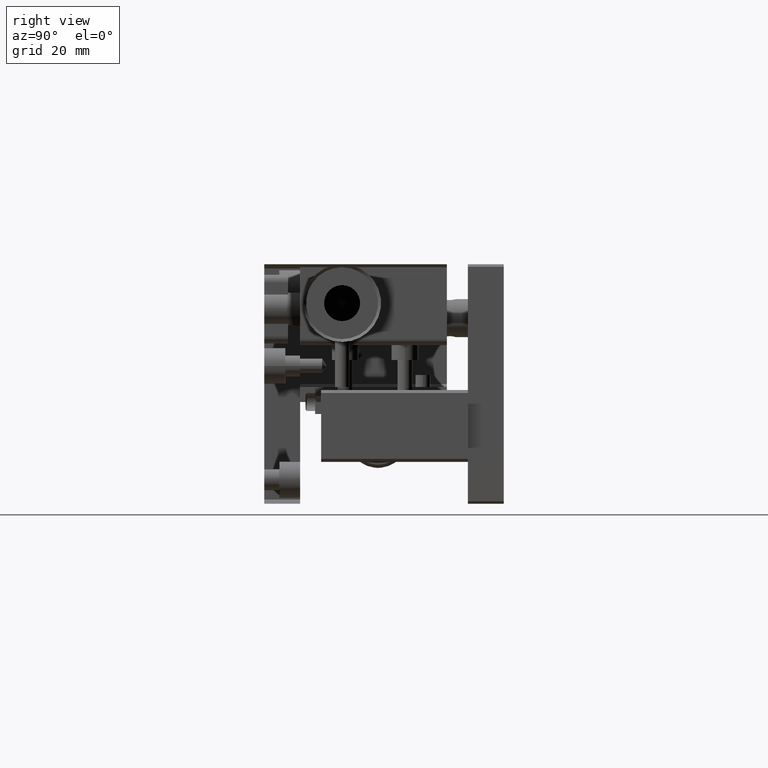
[diagram: clean part render]
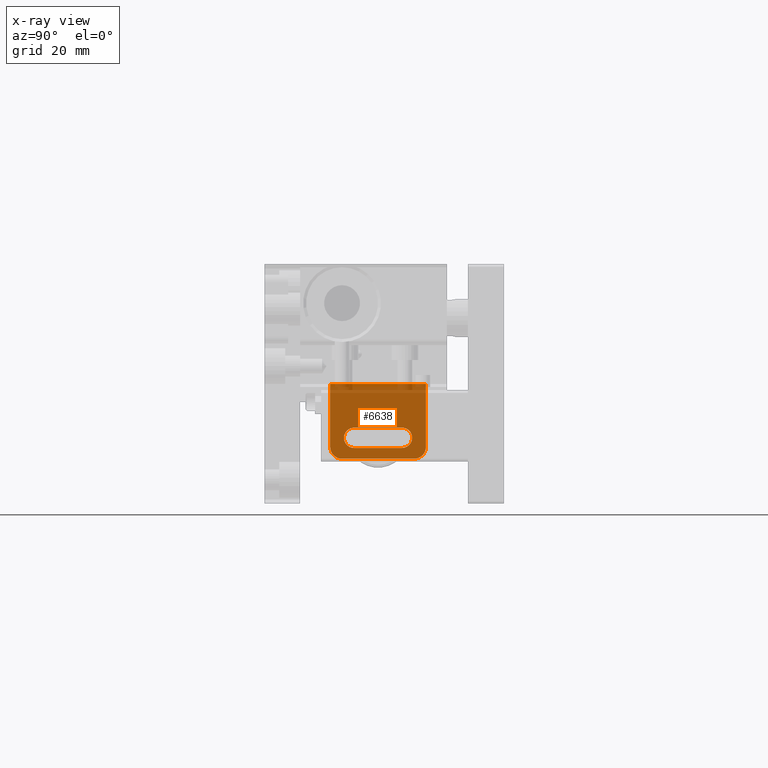
[diagram: x-ray — body ghosted, one internal face saturated and labeled with its STEP entity id]
A machine part, right view, then the same camera in x-ray: the body is ghosted and one INTERNAL B-rep face — a face not visible from any outside direction — is saturated and labeled: STEP entity #6638.
In plain terms, the highlighted planar face has unit normal (1, 0, 0).
Its self-contained STEP definition (entity closure, byte-faithful):
#7 = CARTESIAN_POINT ( 'NONE',  ( -5.000000000000000000, 27.00000000000000000, -30.50000000000000000 ) ) ;
#324 = DIRECTION ( 'NONE',  ( 0.000000000000000000, 0.000000000000000000, -1.000000000000000000 ) ) ;
#582 = CIRCLE ( 'NONE', #1944, 1.700000000000000178 ) ;
#602 = VERTEX_POINT ( 'NONE', #9150 ) ;
#621 = CARTESIAN_POINT ( 'NONE',  ( -5.000000000000000000, 25.00000000000000000, -30.69999999999999929 ) ) ;
#708 = EDGE_CURVE ( 'NONE', #1496, #602, #1750, .T. ) ;
#964 = DIRECTION ( 'NONE',  ( 0.000000000000000000, -1.000000000000000000, -0.000000000000000000 ) ) ;
#976 = VERTEX_POINT ( 'NONE', #5791 ) ;
#1304 = CARTESIAN_POINT ( 'NONE',  ( -5.000000000000000000, 15.00000000000000000, -30.69999999999999929 ) ) ;
#1496 = VERTEX_POINT ( 'NONE', #5086 ) ;
#1525 = CARTESIAN_POINT ( 'NONE',  ( -5.000000000000000000, 25.00000000000000000, -32.50000000000000000 ) ) ;
#1629 = DIRECTION ( 'NONE',  ( -0.000000000000000000, 1.000000000000000000, 0.000000000000000000 ) ) ;
#1750 = CIRCLE ( 'NONE', #10474, 1.999999999999988010 ) ;
#1859 = ORIENTED_EDGE ( 'NONE', *, *, #8424, .F. ) ;
#1944 = AXIS2_PLACEMENT_3D ( 'NONE', #6973, #2085, #7020 ) ;
#1947 = DIRECTION ( 'NONE',  ( -0.000000000000000000, -3.154042683594190190E-16, 1.000000000000000000 ) ) ;
#2085 = DIRECTION ( 'NONE',  ( -1.000000000000000000, -0.000000000000000000, -0.000000000000000000 ) ) ;
#2260 = VECTOR ( 'NONE', #3864, 1000.000000000000000 ) ;
#2311 = EDGE_CURVE ( 'NONE', #7168, #4127, #9356, .T. ) ;
#2444 = VECTOR ( 'NONE', #964, 1000.000000000000000 ) ;
#2490 = DIRECTION ( 'NONE',  ( -0.000000000000000000, -0.000000000000000000, 1.000000000000000000 ) ) ;
#2771 = DIRECTION ( 'NONE',  ( -1.000000000000000000, -0.000000000000000000, -0.000000000000000000 ) ) ;
#2915 = CARTESIAN_POINT ( 'NONE',  ( -5.000000000000000000, 25.00000000000000000, -14.00000000000000000 ) ) ;
#2958 = VECTOR ( 'NONE', #3283, 1000.000000000000000 ) ;
#3032 = EDGE_CURVE ( 'NONE', #976, #9192, #8303, .T. ) ;
#3224 = CARTESIAN_POINT ( 'NONE',  ( -5.000000000000000000, 25.00000000000000000, -27.30000000000000071 ) ) ;
#3283 = DIRECTION ( 'NONE',  ( -0.000000000000000000, 1.000000000000000000, 0.000000000000000000 ) ) ;
#3378 = LINE ( 'NONE', #5906, #6868 ) ;
#3518 = ORIENTED_EDGE ( 'NONE', *, *, #708, .F. ) ;
#3594 = VECTOR ( 'NONE', #1629, 1000.000000000000000 ) ;
#3627 = CARTESIAN_POINT ( 'NONE',  ( -5.000000000000000000, 25.00000000000000000, -30.50000000000000000 ) ) ;
#3686 = CARTESIAN_POINT ( 'NONE',  ( -5.000000000000000000, 15.00000000000000000, -27.30000000000000071 ) ) ;
#3720 = CARTESIAN_POINT ( 'NONE',  ( -5.000000000000000000, 13.00000000000000178, -30.50000000000000000 ) ) ;
#3721 = DIRECTION ( 'NONE',  ( 1.000000000000000000, 0.000000000000000000, 0.000000000000000000 ) ) ;
#3730 = ORIENTED_EDGE ( 'NONE', *, *, #3032, .F. ) ;
#3864 = DIRECTION ( 'NONE',  ( 0.000000000000000000, -1.000000000000000000, -0.000000000000000000 ) ) ;
#3888 = VERTEX_POINT ( 'NONE', #7263 ) ;
#4127 = VERTEX_POINT ( 'NONE', #1304 ) ;
#4170 = VERTEX_POINT ( 'NONE', #10300 ) ;
#4247 = ORIENTED_EDGE ( 'NONE', *, *, #10115, .F. ) ;
#4582 = CARTESIAN_POINT ( 'NONE',  ( -5.000000000000000000, 23.00000000000000000, -30.69999999999999929 ) ) ;
#4625 = DIRECTION ( 'NONE',  ( 1.000000000000000000, 0.000000000000000000, 0.000000000000000000 ) ) ;
#5086 = CARTESIAN_POINT ( 'NONE',  ( -5.000000000000000000, 11.00000000000000888, -30.50000000000000000 ) ) ;
#5106 = EDGE_CURVE ( 'NONE', #602, #3888, #8980, .T. ) ;
#5166 = CIRCLE ( 'NONE', #7912, 2.000000000000008882 ) ;
#5174 = ORIENTED_EDGE ( 'NONE', *, *, #8136, .F. ) ;
#5791 = CARTESIAN_POINT ( 'NONE',  ( -5.000000000000000888, 26.99999999999999645, -20.00000000000000000 ) ) ;
#5894 = EDGE_CURVE ( 'NONE', #4127, #9372, #582, .T. ) ;
#5906 = CARTESIAN_POINT ( 'NONE',  ( -5.000000000000000000, 11.00000000000000000, -14.00000000000000000 ) ) ;
#5976 = EDGE_LOOP ( 'NONE', ( #10214, #9370, #8865, #4247 ) ) ;
#6118 = VERTEX_POINT ( 'NONE', #7 ) ;
#6635 = CARTESIAN_POINT ( 'NONE',  ( -5.000000000000000888, 30.50000000000000000, -20.00000000000000000 ) ) ;
#6638 = ADVANCED_FACE ( 'NONE', ( #9470, #6995 ), #10258, .F. ) ;
#6732 = EDGE_CURVE ( 'NONE', #1496, #9192, #3378, .T. ) ;
#6868 = VECTOR ( 'NONE', #1947, 1000.000000000000000 ) ;
#6973 = CARTESIAN_POINT ( 'NONE',  ( -5.000000000000000000, 15.00000000000000000, -29.00000000000000000 ) ) ;
#6995 = FACE_BOUND ( 'NONE', #5976, .T. ) ;
#7020 = DIRECTION ( 'NONE',  ( 0.000000000000000000, 0.000000000000000000, -1.000000000000000000 ) ) ;
#7168 = VERTEX_POINT ( 'NONE', #4582 ) ;
#7263 = CARTESIAN_POINT ( 'NONE',  ( -5.000000000000000000, 25.00000000000000000, -32.50000000000000000 ) ) ;
#7424 = LINE ( 'NONE', #10526, #8100 ) ;
#7533 = DIRECTION ( 'NONE',  ( 1.000000000000000000, 0.000000000000000000, 0.000000000000000000 ) ) ;
#7688 = DIRECTION ( 'NONE',  ( 0.000000000000000000, 0.000000000000000000, -1.000000000000000000 ) ) ;
#7858 = CIRCLE ( 'NONE', #9230, 1.700000000000000178 ) ;
#7888 = AXIS2_PLACEMENT_3D ( 'NONE', #2915, #3721, #7688 ) ;
#7912 = AXIS2_PLACEMENT_3D ( 'NONE', #3627, #7533, #8511 ) ;
#7943 = ORIENTED_EDGE ( 'NONE', *, *, #5106, .F. ) ;
#8100 = VECTOR ( 'NONE', #2490, 1000.000000000000000 ) ;
#8117 = LINE ( 'NONE', #3224, #3594 ) ;
#8136 = EDGE_CURVE ( 'NONE', #3888, #6118, #5166, .T. ) ;
#8237 = ORIENTED_EDGE ( 'NONE', *, *, #6732, .T. ) ;
#8303 = LINE ( 'NONE', #6635, #2444 ) ;
#8424 = EDGE_CURVE ( 'NONE', #6118, #976, #7424, .T. ) ;
#8511 = DIRECTION ( 'NONE',  ( 0.000000000000000000, 0.000000000000000000, -1.000000000000000000 ) ) ;
#8806 = CARTESIAN_POINT ( 'NONE',  ( -5.000000000000000888, 10.99999999999999645, -20.00000000000000000 ) ) ;
#8865 = ORIENTED_EDGE ( 'NONE', *, *, #9402, .F. ) ;
#8980 = LINE ( 'NONE', #1525, #2958 ) ;
#9150 = CARTESIAN_POINT ( 'NONE',  ( -5.000000000000000000, 13.00000000000000178, -32.50000000000000000 ) ) ;
#9192 = VERTEX_POINT ( 'NONE', #8806 ) ;
#9230 = AXIS2_PLACEMENT_3D ( 'NONE', #10067, #2771, #324 ) ;
#9356 = LINE ( 'NONE', #621, #2260 ) ;
#9370 = ORIENTED_EDGE ( 'NONE', *, *, #2311, .F. ) ;
#9372 = VERTEX_POINT ( 'NONE', #3686 ) ;
#9402 = EDGE_CURVE ( 'NONE', #4170, #7168, #7858, .T. ) ;
#9470 = FACE_OUTER_BOUND ( 'NONE', #10459, .T. ) ;
#10067 = CARTESIAN_POINT ( 'NONE',  ( -5.000000000000000000, 23.00000000000000000, -29.00000000000000000 ) ) ;
#10115 = EDGE_CURVE ( 'NONE', #9372, #4170, #8117, .T. ) ;
#10214 = ORIENTED_EDGE ( 'NONE', *, *, #5894, .F. ) ;
#10257 = DIRECTION ( 'NONE',  ( 0.000000000000000000, 0.000000000000000000, -1.000000000000000000 ) ) ;
#10258 = PLANE ( 'NONE',  #7888 ) ;
#10300 = CARTESIAN_POINT ( 'NONE',  ( -5.000000000000000000, 23.00000000000000000, -27.30000000000000071 ) ) ;
#10459 = EDGE_LOOP ( 'NONE', ( #7943, #3518, #8237, #3730, #1859, #5174 ) ) ;
#10474 = AXIS2_PLACEMENT_3D ( 'NONE', #3720, #4625, #10257 ) ;
#10526 = CARTESIAN_POINT ( 'NONE',  ( -5.000000000000000000, 27.00000000000000000, -14.00000000000000000 ) ) ;